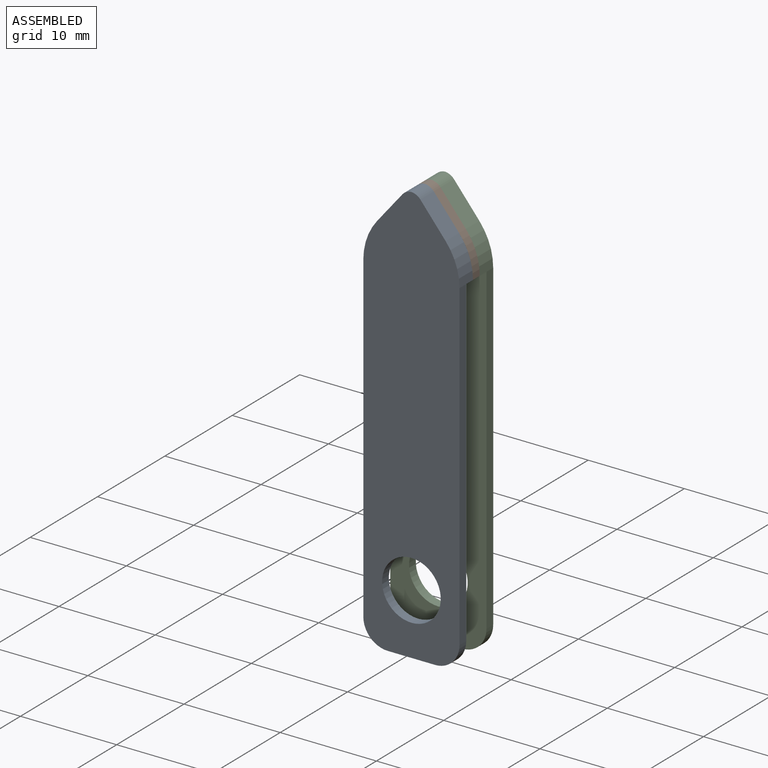
[diagram: assembled view]
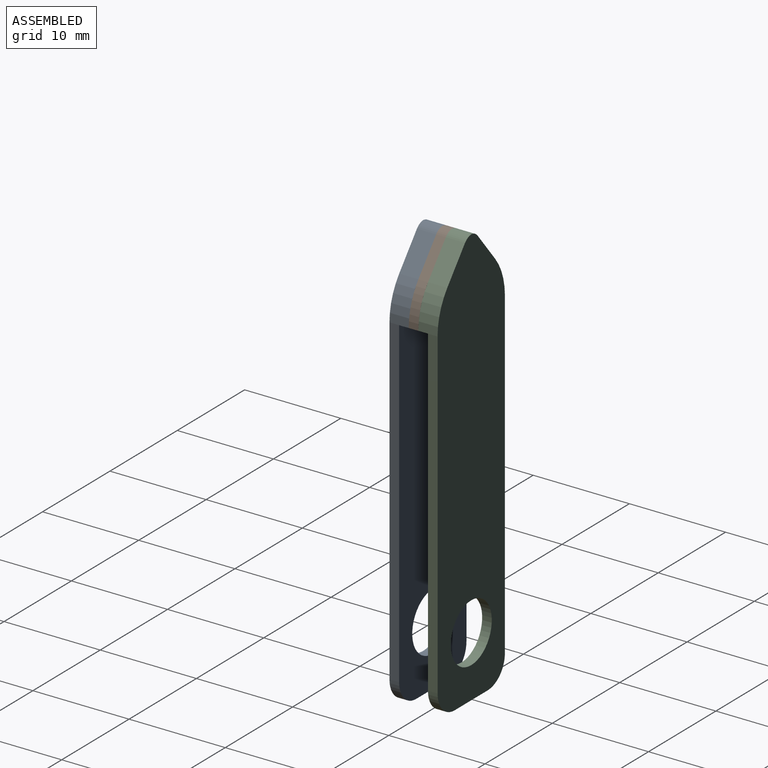
[diagram: assembled view, second angle]
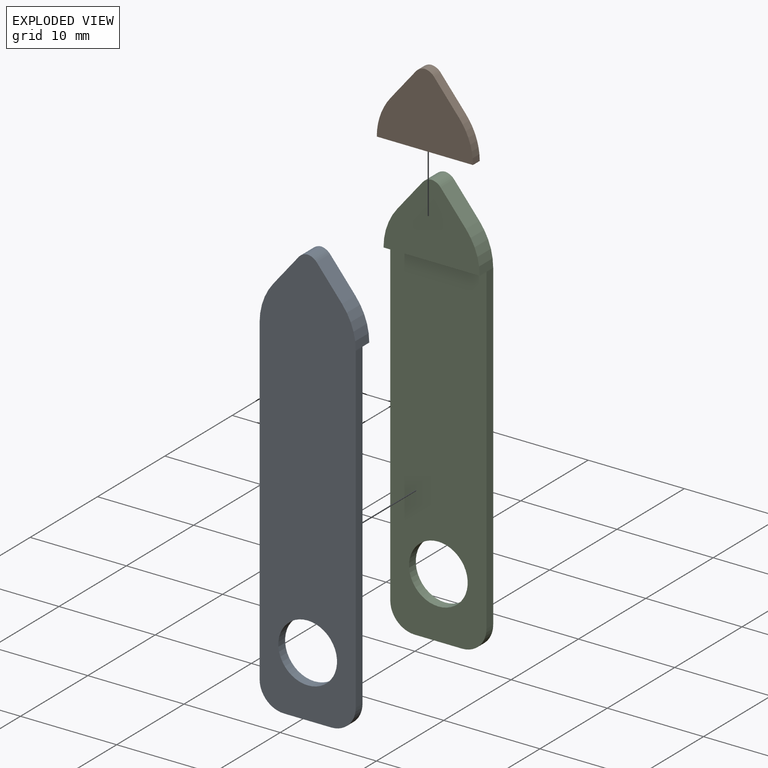
[diagram: exploded view]
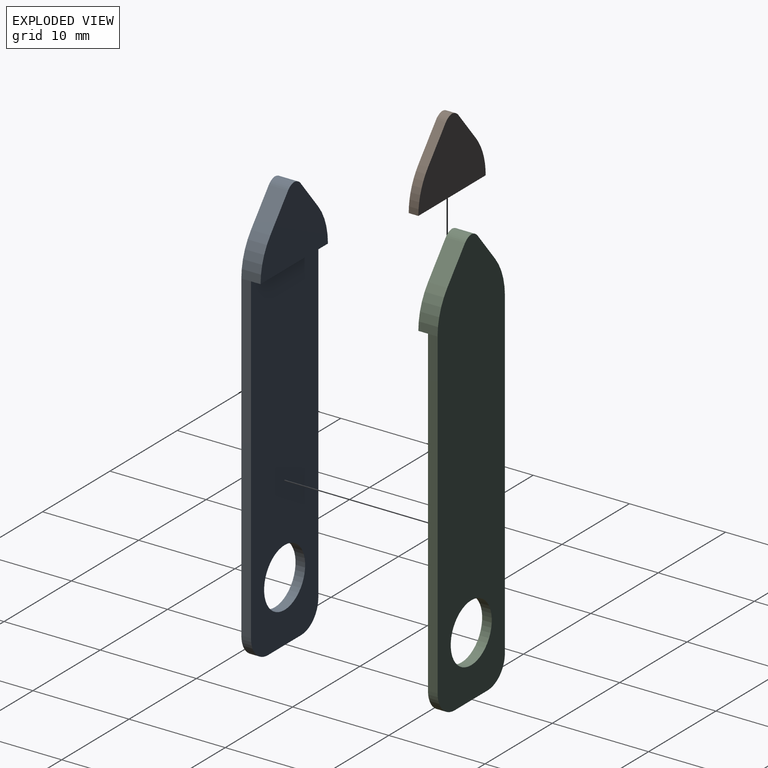
[diagram: exploded view, second angle]
ASSEMBLY  parts=3 mates=2
PART A: 16 faces, bbox 10x2x43.8 mm
  f0: plane 36.08x10mm, normal (0,1,0), area 328.9mm2, adj f1,f2,f3,f11,f12,f13,f14
  f1: plane 4.92x1mm, normal (0,0,-1), area 4.9mm2, adj f0,f4,f12,f13
  f2: plane 33.54x1mm, normal (1,0,0), area 33.5mm2, adj f0,f4,f5,f13
  f3: plane 33.54x1mm, normal (-1,0,0), area 33.5mm2, adj f0,f4,f10,f12
  f4: plane 43.78x10mm, normal (0,-1,0), area 380.4mm2, adj f1,f2,f3,f5,f6,f7,f8,f9
  f5: cylinder r=6.35mm len=4.03mm, axis (0,1,0), area 8.7mm2, adj f2,f4,f6,f14,f15
  f6: plane 3.22x2.64mm, normal (0.77,0,0.63), area 8.3mm2, adj f4,f5,f7,f15
  f7: cylinder r=1.33mm len=2mm, axis (0,1,0), area 2.1mm2, adj f4,f6,f8,f15
  f8: cylinder r=1.33mm len=2mm, axis (0,1,0), area 2.1mm2, adj f4,f7,f9,f15
  f9: plane 3.22x2.64mm, normal (-0.77,0,0.63), area 8.3mm2, adj f4,f8,f10,f15
  f10: cylinder r=6.35mm len=4.03mm, axis (0,1,0), area 8.7mm2, adj f3,f4,f9,f14,f15
  f11: cylinder r=3.05mm len=6.1mm, axis (0,1,0), area 19.2mm2, adj f0,f4
  f12: cylinder r=2.54mm len=2.54mm, axis (0,-1,0), area 4mm2, adj f0,f1,f3,f4
  f13: cylinder r=2.54mm len=2.54mm, axis (0,-1,0), area 4mm2, adj f0,f1,f2,f4
  f14: plane 10x1mm, normal (0,0,-1), area 10mm2, adj f0,f5,f10,f15
  f15: plane 10x7.7mm, normal (0,1,0), area 51.6mm2, adj f5,f6,f7,f8,f9,f10,f14
PART B: 9 faces, bbox 10x1x7.7 mm
  f0: cylinder r=6.35mm len=4.03mm, axis (0,1,0), area 4.4mm2, adj f1,f6,f7,f8
  f1: plane 3.22x2.64mm, normal (0.77,0,0.63), area 4.2mm2, adj f0,f2,f7,f8
  f2: cylinder r=1.33mm len=1mm, axis (0,1,0), area 1.1mm2, adj f1,f3,f7,f8
  f3: cylinder r=1.33mm len=1mm, axis (0,1,0), area 1.1mm2, adj f2,f4,f7,f8
  f4: plane 3.22x2.64mm, normal (-0.77,0,0.63), area 4.2mm2, adj f3,f5,f7,f8
  f5: cylinder r=6.35mm len=4.03mm, axis (0,1,0), area 4.4mm2, adj f4,f6,f7,f8
  f6: plane 10x1mm, normal (0,0,-1), area 10mm2, adj f0,f5,f7,f8
  f7: plane 10x7.7mm, normal (0,1,0), area 51.6mm2, adj f0,f1,f2,f3,f4,f5,f6
  f8: plane 10x7.7mm, normal (0,-1,0), area 51.6mm2, adj f0,f1,f2,f3,f4,f5,f6
PART C: same geometry as A
PLACE A t=(-13.63,8.53,-17.41)mm
PLACE B t=(-13.63,9.53,-17.41)mm
PLACE C rot(axis=(0,0,1),180deg) t=(-3.63,11.53,-17.41)mm
MATE fastened A.f15 <-> B.f8  axis (0,1,0) through (-8.63,9.53,21.6)mm
MATE fastened C.f15 <-> B.f7  axis (0,-1,0) through (-8.63,10.53,21.6)mm
